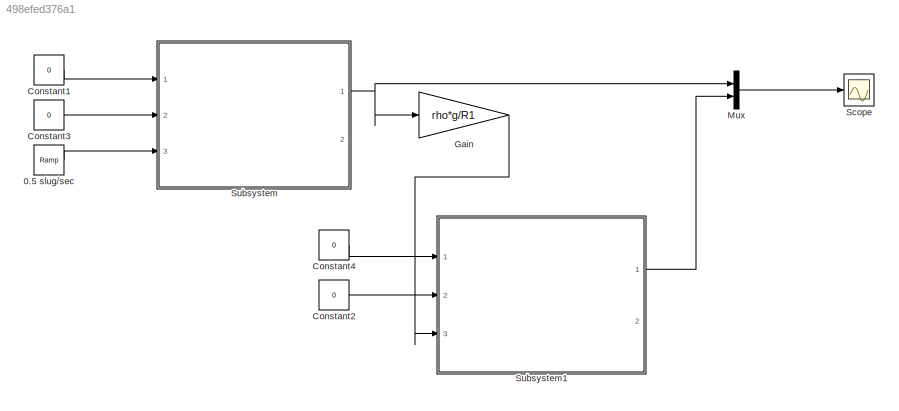
MODEL slx_498efed376a1
KIND model
CONFIG AbsTol = auto
CONFIG EnableMultiTasking = off
CONFIG FixedStep = auto
CONFIG MaxStep = auto
CONFIG MinStep = auto
CONFIG RelTol = 1e-3
CONFIG SampleTimeConstraint = Unconstrained
CONFIG Solver = VariableStepAuto
CONFIG SolverName = VariableStepAuto
CONFIG StartTime = 0.0
CONFIG StopTime = 20
WORKSPACE source: mxarray member
WORKSPACE A1 = 3
WORKSPACE A2 = 5
WORKSPACE R1 = 30
WORKSPACE R2 = 40
WORKSPACE g = 32.2
WORKSPACE h1_0 = 2
WORKSPACE h2_0 = 5
WORKSPACE rho = 1.94
BLOCK [Reference] 0.5 slug//sec  REF=simulink/Sources/Ramp
  Ports = [0, 1]
  SourceBlock = simulink/Sources/Ramp
  SourceProductBaseCode = SL
  SourceType = Ramp
BLOCK [Constant] Constant1
  Value = 0
BLOCK [Constant] Constant2
  Value = 0
BLOCK [Constant] Constant3
  Value = 0
BLOCK [Constant] Constant4
  Value = 0
BLOCK [Gain] Gain
  Gain = rho*g/R1
BLOCK [Mux] Mux
  DisplayOption = bar
  Inputs = 2
  Ports = [2, 1]
BLOCK [Scope] Scope
  Floating = off
  NumInputPorts = 1
  Ports = [1]
  ScopeSpecificationString = Simulink.scopes.TimeScopeBlockCfg('CurrentConfiguration', extmgr.ConfigurationSet(extmgr.Configuration('Core','General UI',true),extmgr.Configuration('Core','Source UI',true),extmgr.Configuration('Sources','WiredSimulink',true),extmgr.Configuration('Visuals','Time Domain',true,'SerializedDisplays',{struct('MinYLimReal','-1.88496','MaxYLimReal','36.72949','YLabelReal','','MinYLimMag','0.00000','Max...<+1379ch>
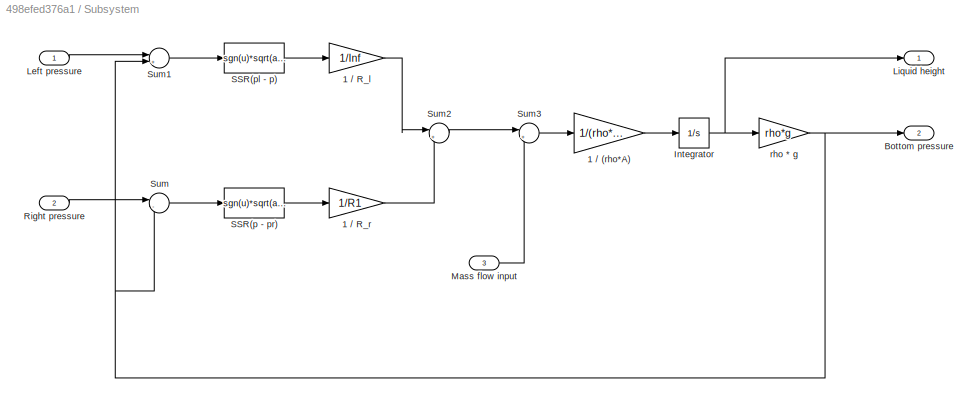
BLOCK [SubSystem] Subsystem
  Ports = [3, 2]
  RequestExecContextInheritance = off
BLOCK [Gain] Subsystem/1 // (rho*A)
  Gain = 1/(rho*A1)
BLOCK [Gain] Subsystem/1 // R_l
  Gain = 1/Inf
BLOCK [Gain] Subsystem/1 // R_r
  Gain = 1/R1
BLOCK [Outport] Subsystem/Bottom pressure
  Port = 2
BLOCK [Integrator] Subsystem/Integrator
  InitialCondition = h1_0
  Ports = [1, 1]
BLOCK [Inport] Subsystem/Left pressure
BLOCK [Outport] Subsystem/Liquid height
BLOCK [Inport] Subsystem/Mass flow input
  Port = 3
BLOCK [Inport] Subsystem/Right pressure
  Port = 2
BLOCK [Fcn] Subsystem/SSR(p - pr)
  Expr = sgn(u)*sqrt(abs(u))
BLOCK [Fcn] Subsystem/SSR(pl - p)
  Expr = sgn(u)*sqrt(abs(u))
BLOCK [Sum] Subsystem/Sum
  Inputs = |-+
  Ports = [2, 1]
BLOCK [Sum] Subsystem/Sum1
  Inputs = |+-
  Ports = [2, 1]
BLOCK [Sum] Subsystem/Sum2
  Inputs = |+-
  Ports = [2, 1]
BLOCK [Sum] Subsystem/Sum3
  Inputs = |++
  Ports = [2, 1]
BLOCK [Gain] Subsystem/rho * g
  Gain = rho*g
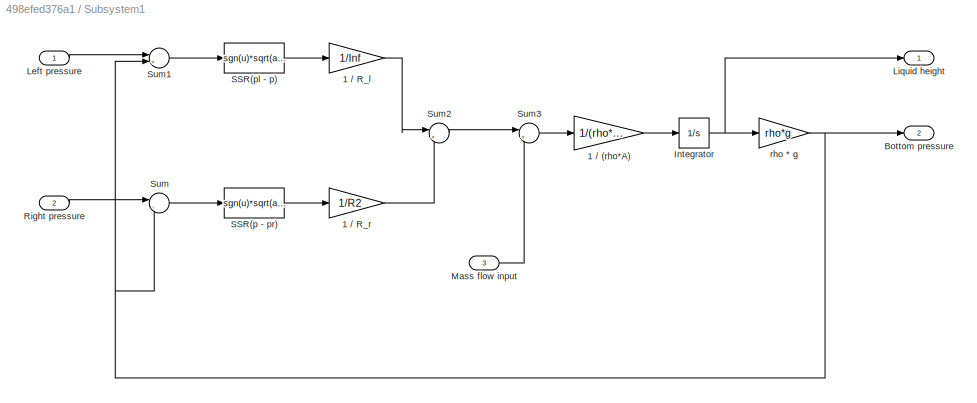
BLOCK [SubSystem] Subsystem1
  Ports = [3, 2]
  RequestExecContextInheritance = off
BLOCK [Gain] Subsystem1/1 // (rho*A)
  Gain = 1/(rho*A2)
BLOCK [Gain] Subsystem1/1 // R_l
  Gain = 1/Inf
BLOCK [Gain] Subsystem1/1 // R_r
  Gain = 1/R2
BLOCK [Outport] Subsystem1/Bottom pressure
  Port = 2
BLOCK [Integrator] Subsystem1/Integrator
  InitialCondition = h2_0
  Ports = [1, 1]
BLOCK [Inport] Subsystem1/Left pressure
BLOCK [Outport] Subsystem1/Liquid height
BLOCK [Inport] Subsystem1/Mass flow input
  Port = 3
BLOCK [Inport] Subsystem1/Right pressure
  Port = 2
BLOCK [Fcn] Subsystem1/SSR(p - pr)
  Expr = sgn(u)*sqrt(abs(u))
BLOCK [Fcn] Subsystem1/SSR(pl - p)
  Expr = sgn(u)*sqrt(abs(u))
BLOCK [Sum] Subsystem1/Sum
  Inputs = |-+
  Ports = [2, 1]
BLOCK [Sum] Subsystem1/Sum1
  Inputs = |+-
  Ports = [2, 1]
BLOCK [Sum] Subsystem1/Sum2
  Inputs = |+-
  Ports = [2, 1]
BLOCK [Sum] Subsystem1/Sum3
  Inputs = |++
  Ports = [2, 1]
BLOCK [Gain] Subsystem1/rho * g
  Gain = rho*g
LINE 0.5 slug//sec:1 -> Subsystem:3
LINE Constant1:1 -> Subsystem:1
LINE Constant2:1 -> Subsystem1:2
LINE Constant3:1 -> Subsystem:2
LINE Constant4:1 -> Subsystem1:1
LINE Gain:1 -> Subsystem1:3
LINE Mux:1 -> Scope:1
LINE Subsystem/1 // (rho*A):1 -> Subsystem/Integrator:1
LINE Subsystem/1 // R_l:1 -> Subsystem/Sum2:1
LINE Subsystem/1 // R_r:1 -> Subsystem/Sum2:2
NET Subsystem/Integrator:1 -> Subsystem/Liquid height:1, Subsystem/rho * g:1
LINE Subsystem/Left pressure:1 -> Subsystem/Sum1:1
LINE Subsystem/Mass flow input:1 -> Subsystem/Sum3:2
LINE Subsystem/Right pressure:1 -> Subsystem/Sum:1
LINE Subsystem/SSR(p - pr):1 -> Subsystem/1 // R_r:1
LINE Subsystem/SSR(pl - p):1 -> Subsystem/1 // R_l:1
LINE Subsystem/Sum1:1 -> Subsystem/SSR(pl - p):1
LINE Subsystem/Sum2:1 -> Subsystem/Sum3:1
LINE Subsystem/Sum3:1 -> Subsystem/1 // (rho*A):1
LINE Subsystem/Sum:1 -> Subsystem/SSR(p - pr):1
NET Subsystem/rho * g:1 -> Subsystem/Bottom pressure:1, Subsystem/Sum1:2, Subsystem/Sum:2
LINE Subsystem1/1 // (rho*A):1 -> Subsystem1/Integrator:1
LINE Subsystem1/1 // R_l:1 -> Subsystem1/Sum2:1
LINE Subsystem1/1 // R_r:1 -> Subsystem1/Sum2:2
NET Subsystem1/Integrator:1 -> Subsystem1/Liquid height:1, Subsystem1/rho * g:1
LINE Subsystem1/Left pressure:1 -> Subsystem1/Sum1:1
LINE Subsystem1/Mass flow input:1 -> Subsystem1/Sum3:2
LINE Subsystem1/Right pressure:1 -> Subsystem1/Sum:1
LINE Subsystem1/SSR(p - pr):1 -> Subsystem1/1 // R_r:1
LINE Subsystem1/SSR(pl - p):1 -> Subsystem1/1 // R_l:1
LINE Subsystem1/Sum1:1 -> Subsystem1/SSR(pl - p):1
LINE Subsystem1/Sum2:1 -> Subsystem1/Sum3:1
LINE Subsystem1/Sum3:1 -> Subsystem1/1 // (rho*A):1
LINE Subsystem1/Sum:1 -> Subsystem1/SSR(p - pr):1
NET Subsystem1/rho * g:1 -> Subsystem1/Bottom pressure:1, Subsystem1/Sum1:2, Subsystem1/Sum:2
LINE Subsystem1:1 -> Mux:2
NET Subsystem:1 -> Gain:1, Mux:1
note: NET lines group one-source signal fan-out (src -> all destinations, sorted); 1:1 wires keep LINE
